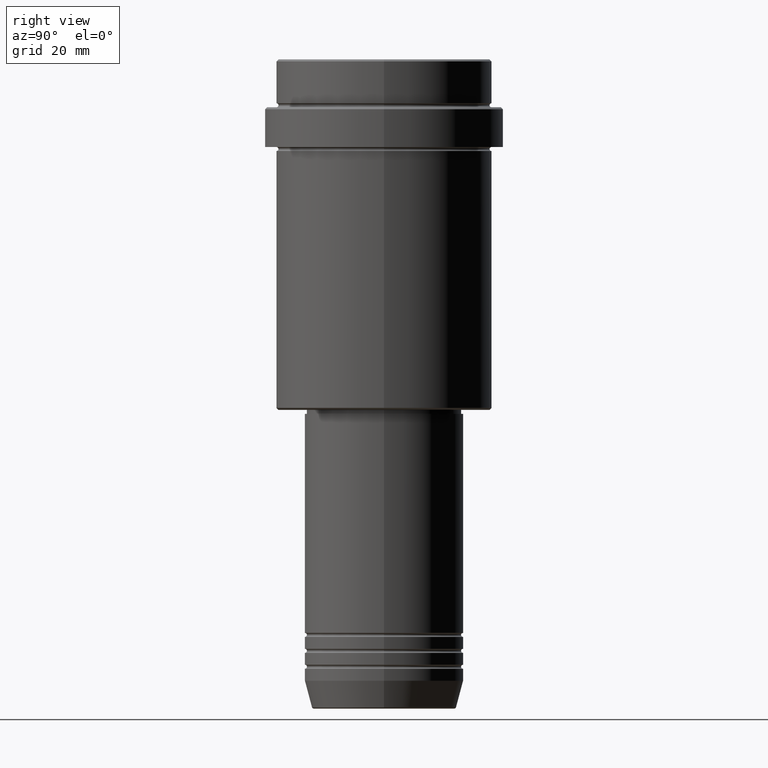
[diagram: clean part render]
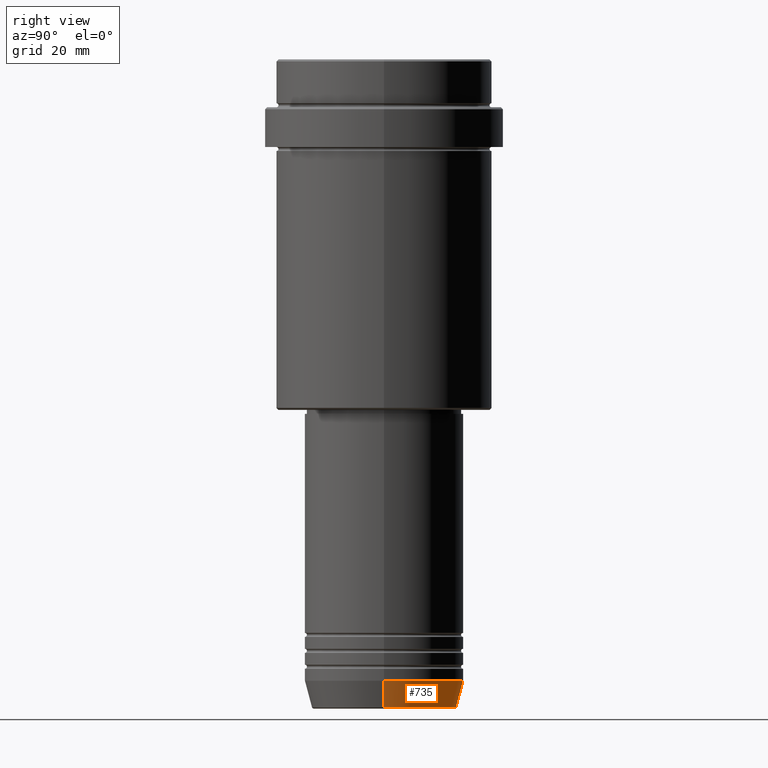
[diagram: same view with one face highlighted and labeled with its STEP entity id]
A machine part, right view. The second image highlights one B-rep face of the part: STEP entity #735.
In plain terms, the highlighted conical surface has half-angle 15 deg.
Its self-contained STEP definition (entity closure, byte-faithful):
#78 = CARTESIAN_POINT ( 'NONE',  ( 0.000000000000000000, 0.000000000000000000, -156.0000000000000000 ) ) ;
#104 = AXIS2_PLACEMENT_3D ( 'NONE', #1271, #1140, #291 ) ;
#122 = VERTEX_POINT ( 'NONE', #577 ) ;
#179 = VERTEX_POINT ( 'NONE', #1216 ) ;
#251 = EDGE_LOOP ( 'NONE', ( #620, #674, #1064, #353 ) ) ;
#291 = DIRECTION ( 'NONE',  ( 1.000000000000000000, 0.000000000000000000, 0.000000000000000000 ) ) ;
#306 = CARTESIAN_POINT ( 'NONE',  ( 0.000000000000000000, 0.000000000000000000, -156.0000000000000000 ) ) ;
#340 = CARTESIAN_POINT ( 'NONE',  ( -20.00000000000000000, 2.449293598294706513E-15, -156.0000000000000000 ) ) ;
#353 = ORIENTED_EDGE ( 'NONE', *, *, #1187, .F. ) ;
#377 = DIRECTION ( 'NONE',  ( 1.000000000000000000, 0.000000000000000000, 0.000000000000000000 ) ) ;
#391 = FACE_OUTER_BOUND ( 'NONE', #251, .T. ) ;
#423 = DIRECTION ( 'NONE',  ( -0.000000000000000000, -0.000000000000000000, 1.000000000000000000 ) ) ;
#446 = DIRECTION ( 'NONE',  ( -0.2588190451025213501, 3.169619151431772337E-17, 0.9659258262890680902 ) ) ;
#448 = EDGE_CURVE ( 'NONE', #122, #179, #671, .T. ) ;
#488 = CARTESIAN_POINT ( 'NONE',  ( 18.22365507213719482, 0.000000000000000000, -162.6294095225512706 ) ) ;
#577 = CARTESIAN_POINT ( 'NONE',  ( -18.22365507213719482, 2.340523841790264718E-15, -162.6294095225512706 ) ) ;
#620 = ORIENTED_EDGE ( 'NONE', *, *, #807, .T. ) ;
#637 = CIRCLE ( 'NONE', #104, 18.22365507213719482 ) ;
#659 = VECTOR ( 'NONE', #446, 1000.000000000000000 ) ;
#671 = LINE ( 'NONE', #340, #659 ) ;
#674 = ORIENTED_EDGE ( 'NONE', *, *, #448, .T. ) ;
#735 = ADVANCED_FACE ( 'NONE', ( #391 ), #1065, .T. ) ;
#741 = DIRECTION ( 'NONE',  ( 0.2588190451025213501, 0.000000000000000000, 0.9659258262890680902 ) ) ;
#764 = VERTEX_POINT ( 'NONE', #847 ) ;
#807 = EDGE_CURVE ( 'NONE', #1021, #122, #637, .T. ) ;
#847 = CARTESIAN_POINT ( 'NONE',  ( 20.00000000000000000, 0.000000000000000000, -156.0000000000000000 ) ) ;
#878 = EDGE_CURVE ( 'NONE', #764, #179, #1218, .T. ) ;
#882 = AXIS2_PLACEMENT_3D ( 'NONE', #78, #1256, #377 ) ;
#1021 = VERTEX_POINT ( 'NONE', #488 ) ;
#1064 = ORIENTED_EDGE ( 'NONE', *, *, #878, .F. ) ;
#1065 = CONICAL_SURFACE ( 'NONE', #882, 20.00000000000000000, 0.2617993877991500740 ) ;
#1140 = DIRECTION ( 'NONE',  ( -0.000000000000000000, -0.000000000000000000, 1.000000000000000000 ) ) ;
#1187 = EDGE_CURVE ( 'NONE', #1021, #764, #1397, .T. ) ;
#1196 = AXIS2_PLACEMENT_3D ( 'NONE', #306, #423, #1321 ) ;
#1198 = VECTOR ( 'NONE', #741, 1000.000000000000000 ) ;
#1216 = CARTESIAN_POINT ( 'NONE',  ( -20.00000000000000000, 2.449293598294706513E-15, -156.0000000000000000 ) ) ;
#1218 = CIRCLE ( 'NONE', #1196, 20.00000000000000000 ) ;
#1256 = DIRECTION ( 'NONE',  ( -0.000000000000000000, -0.000000000000000000, 1.000000000000000000 ) ) ;
#1269 = CARTESIAN_POINT ( 'NONE',  ( 20.00000000000000000, 0.000000000000000000, -156.0000000000000000 ) ) ;
#1271 = CARTESIAN_POINT ( 'NONE',  ( 0.000000000000000000, 0.000000000000000000, -162.6294095225512706 ) ) ;
#1321 = DIRECTION ( 'NONE',  ( 1.000000000000000000, 0.000000000000000000, 0.000000000000000000 ) ) ;
#1397 = LINE ( 'NONE', #1269, #1198 ) ;